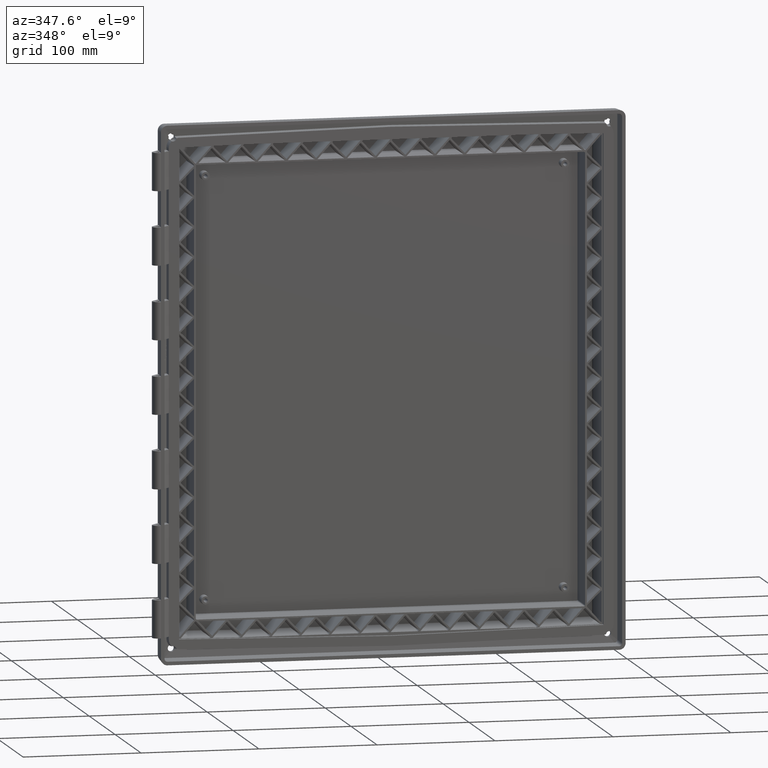
[diagram: clean part render]
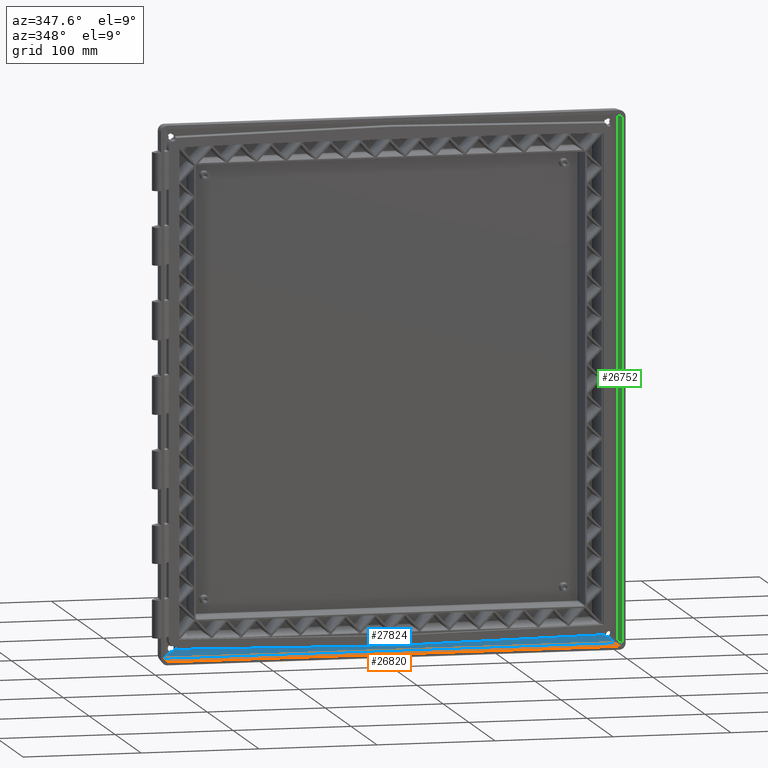
[diagram: same view with three faces highlighted in distinct colors, each labeled with its STEP entity id]
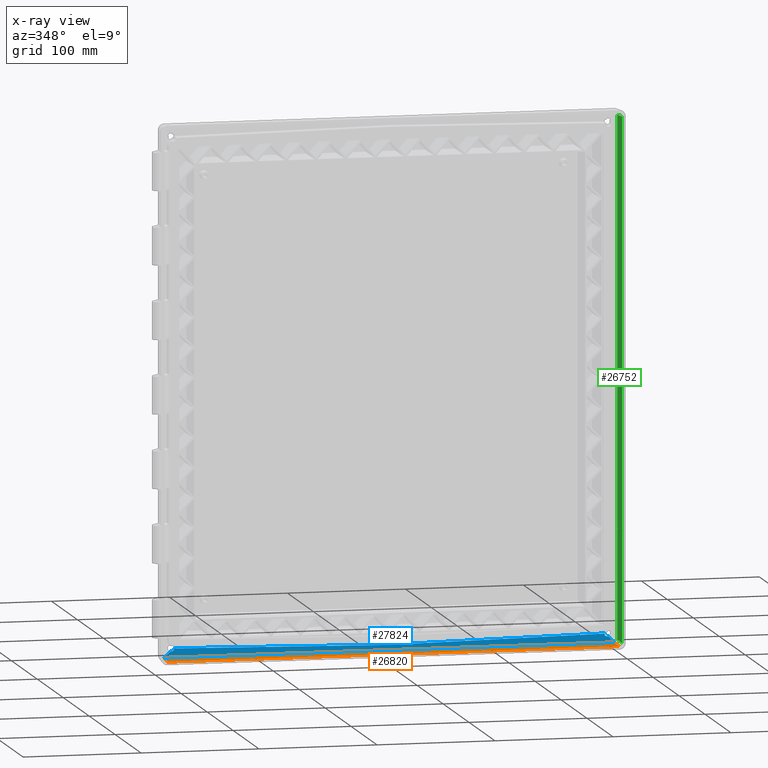
[diagram: x-ray of the same camera — body ghosted, the three highlighted faces saturated]
A machine part, auxiliary view with three faces highlighted in distinct colors.
The next image is the same camera in x-ray (body ghosted, the three faces saturated) — at least one of them is partly hidden behind the body in this view.
Their STEP definitions:

[orange] entity #26820 — the highlighted planar face has unit normal (-0, 0.0523, -0.9986).
#3509 = CARTESIAN_POINT ( 'NONE',  ( 191.4185713593843200, -7.999999999999996400, -223.1651451962704600 ) ) ;
#3991 = CARTESIAN_POINT ( 'NONE',  ( -191.4185713593843400, -7.999999999999996400, -223.1651451962704600 ) ) ;
#3994 = DIRECTION ( 'NONE',  ( 1.000000000000000000, 0.0000000000000000000, 0.0000000000000000000 ) ) ;
#3996 = VECTOR ( 'NONE', #3994, 1000.000000000000000 ) ;
#3998 = CARTESIAN_POINT ( 'NONE',  ( -196.5000000000001700, -7.999999999999996400, -223.1651451962705200 ) ) ;
#3999 = LINE ( 'NONE', #3998, #3996 ) ;
#4923 = CARTESIAN_POINT ( 'NONE',  ( -190.6452050040454400, 6.756709135911458800, -222.3917788409315500 ) ) ;
#4926 = DIRECTION ( 'NONE',  ( 1.000000000000000000, -0.0000000000000000000, -0.0000000000000000000 ) ) ;
#4928 = VECTOR ( 'NONE', #4926, 1000.000000000000000 ) ;
#4930 = CARTESIAN_POINT ( 'NONE',  ( 195.9759222071697600, 6.756709135911459700, -222.3917788409315800 ) ) ;
#4932 = DIRECTION ( 'NONE',  ( 0.0000000000000000000, 0.9986295347545739400, 0.05233595624294395300 ) ) ;
#4934 = DIRECTION ( 'NONE',  ( -0.0000000000000000000, 0.05233595624294395300, -0.9986295347545739400 ) ) ;
#4936 = CARTESIAN_POINT ( 'NONE',  ( 196.5000000000001700, -0.1570078687288318500, -222.7541113957361700 ) ) ;
#4937 = LINE ( 'NONE', #4930, #4928 ) ;
#4941 = AXIS2_PLACEMENT_3D ( 'NONE', #4936, #4934, #4932 ) ;
#4943 = FACE_OUTER_BOUND ( 'NONE', #26821, .T. ) ;
#4950 = PLANE ( 'NONE',  #4941 ) ;
#5019 = DIRECTION ( 'NONE',  ( 0.05226442768871403200, 0.9972646886342372300, 0.05226442768871402500 ) ) ;
#5021 = VECTOR ( 'NONE', #5019, 1000.000000000000200 ) ;
#5023 = CARTESIAN_POINT ( 'NONE',  ( -189.7892365703509400, 23.08955981961697600, -221.5358104072370500 ) ) ;
#5025 = LINE ( 'NONE', #5023, #5021 ) ;
#5031 = DIRECTION ( 'NONE',  ( 0.05226442768871403200, -0.9972646886342372300, -0.05226442768871402500 ) ) ;
#5033 = VECTOR ( 'NONE', #5031, 1000.000000000000200 ) ;
#5035 = CARTESIAN_POINT ( 'NONE',  ( 191.0225406066863300, -0.4432830752258670200, -222.7691144435724800 ) ) ;
#5063 = LINE ( 'NONE', #5035, #5033 ) ;
#5065 = CARTESIAN_POINT ( 'NONE',  ( 190.6452050040454400, 6.756709135911458800, -222.3917788409315800 ) ) ;
#26532 = VERTEX_POINT ( 'NONE', #3509 ) ;
#26590 = EDGE_CURVE ( 'NONE', #26591, #26532, #3999, .T. ) ;
#26591 = VERTEX_POINT ( 'NONE', #3991 ) ;
#26820 = ADVANCED_FACE ( 'NONE', ( #4943 ), #4950, .F. ) ;
#26821 = EDGE_LOOP ( 'NONE', ( #26822, #26823, #26826, #26828 ) ) ;
#26822 = ORIENTED_EDGE ( 'NONE', *, *, #26844, .F. ) ;
#26823 = ORIENTED_EDGE ( 'NONE', *, *, #26824, .F. ) ;
#26824 = EDGE_CURVE ( 'NONE', #26825, #26842, #4937, .T. ) ;
#26825 = VERTEX_POINT ( 'NONE', #4923 ) ;
#26826 = ORIENTED_EDGE ( 'NONE', *, *, #26827, .F. ) ;
#26827 = EDGE_CURVE ( 'NONE', #26591, #26825, #5025, .T. ) ;
#26828 = ORIENTED_EDGE ( 'NONE', *, *, #26590, .T. ) ;
#26842 = VERTEX_POINT ( 'NONE', #5065 ) ;
#26844 = EDGE_CURVE ( 'NONE', #26842, #26532, #5063, .T. ) ;

[blue] entity #27824 — the highlighted planar face has unit normal (0, 0.9954, -0.0958).
#4923 = CARTESIAN_POINT ( 'NONE',  ( -190.6452050040454400, 6.756709135911458800, -222.3917788409315500 ) ) ;
#4926 = DIRECTION ( 'NONE',  ( 1.000000000000000000, -0.0000000000000000000, -0.0000000000000000000 ) ) ;
#4928 = VECTOR ( 'NONE', #4926, 1000.000000000000000 ) ;
#4930 = CARTESIAN_POINT ( 'NONE',  ( 195.9759222071697600, 6.756709135911459700, -222.3917788409315800 ) ) ;
#4937 = LINE ( 'NONE', #4930, #4928 ) ;
#5036 = CARTESIAN_POINT ( 'NONE',  ( 190.6452050040454400, 6.756709135911458800, -222.3917788409315800 ) ) ;
#5038 = CARTESIAN_POINT ( 'NONE',  ( 190.7377121914689200, 6.756709135911458800, -222.3917788409315800 ) ) ;
#5039 = CARTESIAN_POINT ( 'NONE',  ( 190.8300374449978600, 6.757204859365932800, -222.3866305560149200 ) ) ;
#5040 = CARTESIAN_POINT ( 'NONE',  ( 190.9218974751408400, 6.758194785204097800, -222.3763497831056700 ) ) ;
#5046 =( BOUNDED_CURVE ( )  B_SPLINE_CURVE ( 3, ( #5040, #5039, #5038, #5036 ),
 .UNSPECIFIED., .F., .T. ) 
 B_SPLINE_CURVE_WITH_KNOTS ( ( 4, 4 ),
 ( 0.2256157631637720800, 0.3364159552918568100 ),
 .UNSPECIFIED. ) 
 CURVE ( )  GEOMETRIC_REPRESENTATION_ITEM ( )  RATIONAL_B_SPLINE_CURVE ( ( 1.000000000000000000, 0.9989772047532758900, 0.9989772047532758900, 1.000000000000000000 ) ) 
 REPRESENTATION_ITEM ( '' )  );
#5065 = CARTESIAN_POINT ( 'NONE',  ( 190.6452050040454400, 6.756709135911458800, -222.3917788409315800 ) ) ;
#5068 = CARTESIAN_POINT ( 'NONE',  ( 190.9218974751408400, 6.758194785204097800, -222.3763497831056700 ) ) ;
#5477 =( BOUNDED_CURVE ( )  B_SPLINE_CURVE ( 3, ( #5589, #5588, #5586, #5583 ),
 .UNSPECIFIED., .F., .T. ) 
 B_SPLINE_CURVE_WITH_KNOTS ( ( 4, 4 ),
 ( 5.946769351887729400, 6.057569544015780800 ),
 .UNSPECIFIED. ) 
 CURVE ( )  GEOMETRIC_REPRESENTATION_ITEM ( )  RATIONAL_B_SPLINE_CURVE ( ( 1.000000000000000000, 0.9989772047532765600, 0.9989772047532765600, 1.000000000000000000 ) ) 
 REPRESENTATION_ITEM ( '' )  );
#5483 = CARTESIAN_POINT ( 'NONE',  ( -190.9218974751407800, 6.758194785204097800, -222.3763497831056400 ) ) ;
#5583 = CARTESIAN_POINT ( 'NONE',  ( -190.9218974751407800, 6.758194785204097800, -222.3763497831056400 ) ) ;
#5586 = CARTESIAN_POINT ( 'NONE',  ( -190.8300374449978000, 6.757204859365934600, -222.3866305560149500 ) ) ;
#5588 = CARTESIAN_POINT ( 'NONE',  ( -190.7377121914689200, 6.756709135911460600, -222.3917788409315800 ) ) ;
#5589 = CARTESIAN_POINT ( 'NONE',  ( -190.6452050040454400, 6.756709135911458800, -222.3917788409315500 ) ) ;
#9241 = LINE ( 'NONE', #9334, #9333 ) ;
#9319 = DIRECTION ( 'NONE',  ( 0.7054734583899195900, -0.06792936783698909400, -0.7054734583899194800 ) ) ;
#9321 = VECTOR ( 'NONE', #9319, 1000.000000000000100 ) ;
#9323 = CARTESIAN_POINT ( 'NONE',  ( 194.7001059015423700, 6.394394691933983100, -226.1545582095072000 ) ) ;
#9325 = LINE ( 'NONE', #9323, #9321 ) ;
#9329 = CARTESIAN_POINT ( 'NONE',  ( -180.3274595042763100, 7.490234595854691900, -214.7738256710299000 ) ) ;
#9331 = DIRECTION ( 'NONE',  ( -0.9998478229908014400, 0.001672036942204917000, 0.01736476757745861500 ) ) ;
#9333 = VECTOR ( 'NONE', #9331, 999.9999999999998900 ) ;
#9334 = CARTESIAN_POINT ( 'NONE',  ( -179.3278304738495600, 7.488562924797416400, -214.7911866387470900 ) ) ;
#9424 = CARTESIAN_POINT ( 'NONE',  ( 185.7481649904778200, 7.256368561780972100, -217.2026172984426500 ) ) ;
#9429 = CARTESIAN_POINT ( 'NONE',  ( 180.3274595042762800, 7.490234595854692800, -214.7738256710298700 ) ) ;
#9430 = CARTESIAN_POINT ( 'NONE',  ( 180.9427858046984500, 7.491263600751395300, -214.7631390465802500 ) ) ;
#9432 = CARTESIAN_POINT ( 'NONE',  ( 181.5537800180471200, 7.498439914203791200, -214.6886101818055900 ) ) ;
#9433 = CARTESIAN_POINT ( 'NONE',  ( 182.1537680341251900, 7.511685146751315900, -214.5510531823807400 ) ) ;
#9438 =( BOUNDED_CURVE ( )  B_SPLINE_CURVE ( 3, ( #9433, #9432, #9430, #9429 ),
 .UNSPECIFIED., .F., .T. ) 
 B_SPLINE_CURVE_WITH_KNOTS ( ( 4, 4 ),
 ( 5.191860160187467900, 5.400985180749992200 ),
 .UNSPECIFIED. ) 
 CURVE ( )  GEOMETRIC_REPRESENTATION_ITEM ( )  RATIONAL_B_SPLINE_CURVE ( ( 1.000000000000000000, 0.9963588797561842000, 0.9963588797561842000, 1.000000000000000000 ) ) 
 REPRESENTATION_ITEM ( '' )  );
#9440 = CARTESIAN_POINT ( 'NONE',  ( 185.0000000000000000, 7.246736507901292000, -217.3026500026804200 ) ) ;
#9442 = CARTESIAN_POINT ( 'NONE',  ( 185.2530958302788000, 7.246736507901292000, -217.3026500026804500 ) ) ;
#9444 = CARTESIAN_POINT ( 'NONE',  ( 185.5039592844126200, 7.249966183624446000, -217.2691085378553700 ) ) ;
#9445 = CARTESIAN_POINT ( 'NONE',  ( 185.7481649904778200, 7.256368561780972100, -217.2026172984426500 ) ) ;
#9456 =( BOUNDED_CURVE ( )  B_SPLINE_CURVE ( 3, ( #9445, #9444, #9442, #9440 ),
 .UNSPECIFIED., .F., .T. ) 
 B_SPLINE_CURVE_WITH_KNOTS ( ( 4, 4 ),
 ( 6.017354127281715900, 6.283185307179586200 ),
 .UNSPECIFIED. ) 
 CURVE ( )  GEOMETRIC_REPRESENTATION_ITEM ( )  RATIONAL_B_SPLINE_CURVE ( ( 1.000000000000000000, 0.9941198131882524900, 0.9941198131882524900, 1.000000000000000000 ) ) 
 REPRESENTATION_ITEM ( '' )  );
#9481 =( BOUNDED_CURVE ( )  B_SPLINE_CURVE ( 3, ( #9510, #9509, #9508, #9507 ),
 .UNSPECIFIED., .F., .F. ) 
 B_SPLINE_CURVE_WITH_KNOTS ( ( 4, 4 ),
 ( 0.8822001264295936700, 1.091325146992118400 ),
 .UNSPECIFIED. ) 
 CURVE ( )  GEOMETRIC_REPRESENTATION_ITEM ( )  RATIONAL_B_SPLINE_CURVE ( ( 1.000000000000000000, 0.9963588797561839800, 0.9963588797561839800, 1.000000000000000000 ) ) 
 REPRESENTATION_ITEM ( '' )  );
#9490 = LINE ( 'NONE', #9537, #9536 ) ;
#9491 = DIRECTION ( 'NONE',  ( 0.0000000000000000000, 0.09584575252022103900, 0.9953961983671790700 ) ) ;
#9492 = DIRECTION ( 'NONE',  ( 0.0000000000000000000, 0.9953961983671790700, -0.09584575252022103900 ) ) ;
#9493 = AXIS2_PLACEMENT_3D ( 'NONE', #9494, #9492, #9491 ) ;
#9494 = CARTESIAN_POINT ( 'NONE',  ( 195.9759222071697600, 6.516113305714871900, -224.8904620733487100 ) ) ;
#9495 = PLANE ( 'NONE',  #9493 ) ;
#9496 = FACE_OUTER_BOUND ( 'NONE', #27825, .T. ) ;
#9497 = DIRECTION ( 'NONE',  ( 0.7054734583899195900, 0.06792936783698909400, 0.7054734583899194800 ) ) ;
#9498 = VECTOR ( 'NONE', #9497, 1000.000000000000100 ) ;
#9499 = CARTESIAN_POINT ( 'NONE',  ( -194.7001059015423400, 6.394394691933980500, -226.1545582095072300 ) ) ;
#9500 = LINE ( 'NONE', #9499, #9498 ) ;
#9501 = CARTESIAN_POINT ( 'NONE',  ( -185.7481649904778200, 7.256368561780966800, -217.2026172984426800 ) ) ;
#9502 = CARTESIAN_POINT ( 'NONE',  ( -185.5039592844125900, 7.249966183624446000, -217.2691085378554000 ) ) ;
#9503 = CARTESIAN_POINT ( 'NONE',  ( -185.2530958302787400, 7.246736507901292000, -217.3026500026804500 ) ) ;
#9504 = CARTESIAN_POINT ( 'NONE',  ( -185.0000000000000000, 7.246736507901292000, -217.3026500026804200 ) ) ;
#9505 = CARTESIAN_POINT ( 'NONE',  ( -185.7481649904778200, 7.256368561780966800, -217.2026172984426800 ) ) ;
#9506 =( BOUNDED_CURVE ( )  B_SPLINE_CURVE ( 3, ( #9504, #9503, #9502, #9501 ),
 .UNSPECIFIED., .F., .F. ) 
 B_SPLINE_CURVE_WITH_KNOTS ( ( 4, 4 ),
 ( 0.0000000000000000000, 0.2658311798978584800 ),
 .UNSPECIFIED. ) 
 CURVE ( )  GEOMETRIC_REPRESENTATION_ITEM ( )  RATIONAL_B_SPLINE_CURVE ( ( 1.000000000000000000, 0.9941198131882531500, 0.9941198131882531500, 1.000000000000000000 ) ) 
 REPRESENTATION_ITEM ( '' )  );
#9507 = CARTESIAN_POINT ( 'NONE',  ( -182.1537680341252200, 7.511685146751307100, -214.5510531823807700 ) ) ;
#9508 = CARTESIAN_POINT ( 'NONE',  ( -181.5537800180471800, 7.498439914203784100, -214.6886101818056100 ) ) ;
#9509 = CARTESIAN_POINT ( 'NONE',  ( -180.9427858046984500, 7.491263600751387300, -214.7631390465802500 ) ) ;
#9510 = CARTESIAN_POINT ( 'NONE',  ( -180.3274595042763100, 7.490234595854691900, -214.7738256710299000 ) ) ;
#9533 = CARTESIAN_POINT ( 'NONE',  ( 0.0000000000000000000, 7.188674531360872400, -217.9056466843103700 ) ) ;
#9534 = CARTESIAN_POINT ( 'NONE',  ( 180.3274595042762800, 7.490234595854692800, -214.7738256710298700 ) ) ;
#9535 = DIRECTION ( 'NONE',  ( -0.9998478229908014400, -0.001672036942204917000, -0.01736476757745861500 ) ) ;
#9536 = VECTOR ( 'NONE', #9535, 999.9999999999998900 ) ;
#9537 = CARTESIAN_POINT ( 'NONE',  ( 0.1585765575110430200, 7.188939717578445100, -217.9028926201407000 ) ) ;
#18919 = VERTEX_POINT ( 'NONE', #31655 ) ;
#18926 = VERTEX_POINT ( 'NONE', #31690 ) ;
#18928 = EDGE_CURVE ( 'NONE', #18929, #18926, #31688, .T. ) ;
#18929 = VERTEX_POINT ( 'NONE', #31689 ) ;
#18974 = EDGE_CURVE ( 'NONE', #18975, #18919, #31811, .T. ) ;
#18975 = VERTEX_POINT ( 'NONE', #31813 ) ;
#26824 = EDGE_CURVE ( 'NONE', #26825, #26842, #4937, .T. ) ;
#26825 = VERTEX_POINT ( 'NONE', #4923 ) ;
#26839 = VERTEX_POINT ( 'NONE', #5068 ) ;
#26841 = EDGE_CURVE ( 'NONE', #26839, #26842, #5046, .T. ) ;
#26842 = VERTEX_POINT ( 'NONE', #5065 ) ;
#26978 = EDGE_CURVE ( 'NONE', #26825, #26979, #5477, .T. ) ;
#26979 = VERTEX_POINT ( 'NONE', #5483 ) ;
#27745 = EDGE_CURVE ( 'NONE', #27829, #27746, #9241, .T. ) ;
#27746 = VERTEX_POINT ( 'NONE', #9329 ) ;
#27747 = EDGE_CURVE ( 'NONE', #27770, #26839, #9325, .T. ) ;
#27770 = VERTEX_POINT ( 'NONE', #9424 ) ;
#27795 = ORIENTED_EDGE ( 'NONE', *, *, #27747, .F. ) ;
#27796 = ORIENTED_EDGE ( 'NONE', *, *, #27797, .T. ) ;
#27797 = EDGE_CURVE ( 'NONE', #27770, #18975, #9456, .T. ) ;
#27798 = ORIENTED_EDGE ( 'NONE', *, *, #18974, .T. ) ;
#27799 = ORIENTED_EDGE ( 'NONE', *, *, #27800, .T. ) ;
#27800 = EDGE_CURVE ( 'NONE', #18919, #27828, #9438, .T. ) ;
#27808 = ORIENTED_EDGE ( 'NONE', *, *, #27809, .T. ) ;
#27809 = EDGE_CURVE ( 'NONE', #27746, #18929, #9481, .T. ) ;
#27810 = ORIENTED_EDGE ( 'NONE', *, *, #18928, .T. ) ;
#27811 = ORIENTED_EDGE ( 'NONE', *, *, #27812, .T. ) ;
#27812 = EDGE_CURVE ( 'NONE', #18926, #27813, #9506, .T. ) ;
#27813 = VERTEX_POINT ( 'NONE', #9505 ) ;
#27814 = ORIENTED_EDGE ( 'NONE', *, *, #27815, .F. ) ;
#27815 = EDGE_CURVE ( 'NONE', #26979, #27813, #9500, .T. ) ;
#27816 = ORIENTED_EDGE ( 'NONE', *, *, #26978, .F. ) ;
#27817 = ORIENTED_EDGE ( 'NONE', *, *, #26824, .T. ) ;
#27818 = ORIENTED_EDGE ( 'NONE', *, *, #26841, .F. ) ;
#27824 = ADVANCED_FACE ( 'NONE', ( #9496 ), #9495, .F. ) ;
#27825 = EDGE_LOOP ( 'NONE', ( #27826, #27830, #27808, #27810, #27811, #27814, #27816, #27817, #27818, #27795, #27796, #27798, #27799 ) ) ;
#27826 = ORIENTED_EDGE ( 'NONE', *, *, #27827, .T. ) ;
#27827 = EDGE_CURVE ( 'NONE', #27828, #27829, #9490, .T. ) ;
#27828 = VERTEX_POINT ( 'NONE', #9534 ) ;
#27829 = VERTEX_POINT ( 'NONE', #9533 ) ;
#27830 = ORIENTED_EDGE ( 'NONE', *, *, #27745, .T. ) ;
#31655 = CARTESIAN_POINT ( 'NONE',  ( 182.1537680341251900, 7.511685146751315900, -214.5510531823807400 ) ) ;
#31684 = CARTESIAN_POINT ( 'NONE',  ( -185.0000000000000000, 7.246736507901292000, -217.3026500026804200 ) ) ;
#31685 = CARTESIAN_POINT ( 'NONE',  ( -183.3761444481845600, 7.246736507901292000, -217.3026500026804500 ) ) ;
#31686 = CARTESIAN_POINT ( 'NONE',  ( -182.2086594275007800, 7.355414778265975800, -216.1739830109605400 ) ) ;
#31687 = CARTESIAN_POINT ( 'NONE',  ( -182.1537680341252200, 7.511685146751307100, -214.5510531823807700 ) ) ;
#31688 =( BOUNDED_CURVE ( )  B_SPLINE_CURVE ( 3, ( #31687, #31686, #31685, #31684 ),
 .UNSPECIFIED., .F., .T. ) 
 B_SPLINE_CURVE_WITH_KNOTS ( ( 4, 4 ),
 ( 4.746198546951998100, 6.283185307179586200 ),
 .UNSPECIFIED. ) 
 CURVE ( )  GEOMETRIC_REPRESENTATION_ITEM ( )  RATIONAL_B_SPLINE_CURVE ( ( 1.000000000000000000, 0.8126391104095696000, 0.8126391104095696000, 1.000000000000000000 ) ) 
 REPRESENTATION_ITEM ( '' )  );
#31689 = CARTESIAN_POINT ( 'NONE',  ( -182.1537680341252200, 7.511685146751307100, -214.5510531823807700 ) ) ;
#31690 = CARTESIAN_POINT ( 'NONE',  ( -185.0000000000000000, 7.246736507901292000, -217.3026500026804200 ) ) ;
#31807 = CARTESIAN_POINT ( 'NONE',  ( 182.1537680341251900, 7.511685146751315900, -214.5510531823807400 ) ) ;
#31808 = CARTESIAN_POINT ( 'NONE',  ( 182.2086594275007800, 7.355414778265975800, -216.1739830109605400 ) ) ;
#31809 = CARTESIAN_POINT ( 'NONE',  ( 183.3761444481844800, 7.246736507901293800, -217.3026500026804500 ) ) ;
#31810 = CARTESIAN_POINT ( 'NONE',  ( 185.0000000000000000, 7.246736507901292000, -217.3026500026804200 ) ) ;
#31811 =( BOUNDED_CURVE ( )  B_SPLINE_CURVE ( 3, ( #31810, #31809, #31808, #31807 ),
 .UNSPECIFIED., .F., .T. ) 
 B_SPLINE_CURVE_WITH_KNOTS ( ( 4, 4 ),
 ( 0.0000000000000000000, 1.536986760227598400 ),
 .UNSPECIFIED. ) 
 CURVE ( )  GEOMETRIC_REPRESENTATION_ITEM ( )  RATIONAL_B_SPLINE_CURVE ( ( 1.000000000000000000, 0.8126391104095672700, 0.8126391104095672700, 1.000000000000000000 ) ) 
 REPRESENTATION_ITEM ( '' )  );
#31813 = CARTESIAN_POINT ( 'NONE',  ( 185.0000000000000000, 7.246736507901292000, -217.3026500026804200 ) ) ;

[green] entity #26752 — the highlighted planar face has unit normal (0.9986, 0.0523, -0).
#4123 = CARTESIAN_POINT ( 'NONE',  ( 193.9151451962707400, -7.999999999999996400, -220.6685713593840300 ) ) ;
#4125 = DIRECTION ( 'NONE',  ( 0.0000000000000000000, 0.0000000000000000000, 1.000000000000000000 ) ) ;
#4127 = VECTOR ( 'NONE', #4125, 1000.000000000000000 ) ;
#4129 = CARTESIAN_POINT ( 'NONE',  ( 193.9151451962708000, -7.999999999999996400, 225.7499999999998900 ) ) ;
#4147 = LINE ( 'NONE', #4129, #4127 ) ;
#4148 = CARTESIAN_POINT ( 'NONE',  ( 193.9151451962707400, -7.999999999999996400, 220.6685713593840300 ) ) ;
#4457 = LINE ( 'NONE', #4535, #4534 ) ;
#4459 = CARTESIAN_POINT ( 'NONE',  ( 193.1417788409318600, 6.756709135911458800, 219.8952050040451500 ) ) ;
#4533 = DIRECTION ( 'NONE',  ( 0.05226442768871403200, -0.9972646886342372300, 0.05226442768871402500 ) ) ;
#4534 = VECTOR ( 'NONE', #4533, 1000.000000000000200 ) ;
#4535 = CARTESIAN_POINT ( 'NONE',  ( 193.5191144435727600, -0.4432830752258670200, 220.2725406066860500 ) ) ;
#4720 = PLANE ( 'NONE',  #4721 ) ;
#4721 = AXIS2_PLACEMENT_3D ( 'NONE', #4817, #4816, #4815 ) ;
#4722 = FACE_OUTER_BOUND ( 'NONE', #26753, .T. ) ;
#4801 = DIRECTION ( 'NONE',  ( -0.05226442768871403200, 0.9972646886342372300, 0.05226442768871402500 ) ) ;
#4802 = VECTOR ( 'NONE', #4801, 1000.000000000000200 ) ;
#4803 = CARTESIAN_POINT ( 'NONE',  ( 193.5191144435727600, -0.4432830752258676800, -220.2725406066860500 ) ) ;
#4804 = LINE ( 'NONE', #4803, #4802 ) ;
#4807 = CARTESIAN_POINT ( 'NONE',  ( 193.1417788409318600, 6.756709135911458800, -219.8952050040451500 ) ) ;
#4808 = DIRECTION ( 'NONE',  ( 0.0000000000000000000, -0.0000000000000000000, 1.000000000000000000 ) ) ;
#4810 = VECTOR ( 'NONE', #4808, 1000.000000000000000 ) ;
#4812 = CARTESIAN_POINT ( 'NONE',  ( 193.1417788409318600, 6.756709135911459700, 225.2259222071694800 ) ) ;
#4815 = DIRECTION ( 'NONE',  ( -0.05233595624294396000, 0.9986295347545739400, 0.0000000000000000000 ) ) ;
#4816 = DIRECTION ( 'NONE',  ( 0.9986295347545739400, 0.05233595624294396000, -0.0000000000000000000 ) ) ;
#4817 = CARTESIAN_POINT ( 'NONE',  ( 193.5041113957364600, -0.1570078687288318500, 225.7499999999998900 ) ) ;
#4818 = LINE ( 'NONE', #4812, #4810 ) ;
#26608 = VERTEX_POINT ( 'NONE', #4148 ) ;
#26610 = EDGE_CURVE ( 'NONE', #26611, #26608, #4147, .T. ) ;
#26611 = VERTEX_POINT ( 'NONE', #4123 ) ;
#26694 = VERTEX_POINT ( 'NONE', #4459 ) ;
#26696 = EDGE_CURVE ( 'NONE', #26694, #26608, #4457, .T. ) ;
#26752 = ADVANCED_FACE ( 'NONE', ( #4722 ), #4720, .F. ) ;
#26753 = EDGE_LOOP ( 'NONE', ( #26754, #26755, #26758, #26760 ) ) ;
#26754 = ORIENTED_EDGE ( 'NONE', *, *, #26696, .F. ) ;
#26755 = ORIENTED_EDGE ( 'NONE', *, *, #26756, .F. ) ;
#26756 = EDGE_CURVE ( 'NONE', #26757, #26694, #4818, .T. ) ;
#26757 = VERTEX_POINT ( 'NONE', #4807 ) ;
#26758 = ORIENTED_EDGE ( 'NONE', *, *, #26759, .F. ) ;
#26759 = EDGE_CURVE ( 'NONE', #26611, #26757, #4804, .T. ) ;
#26760 = ORIENTED_EDGE ( 'NONE', *, *, #26610, .T. ) ;